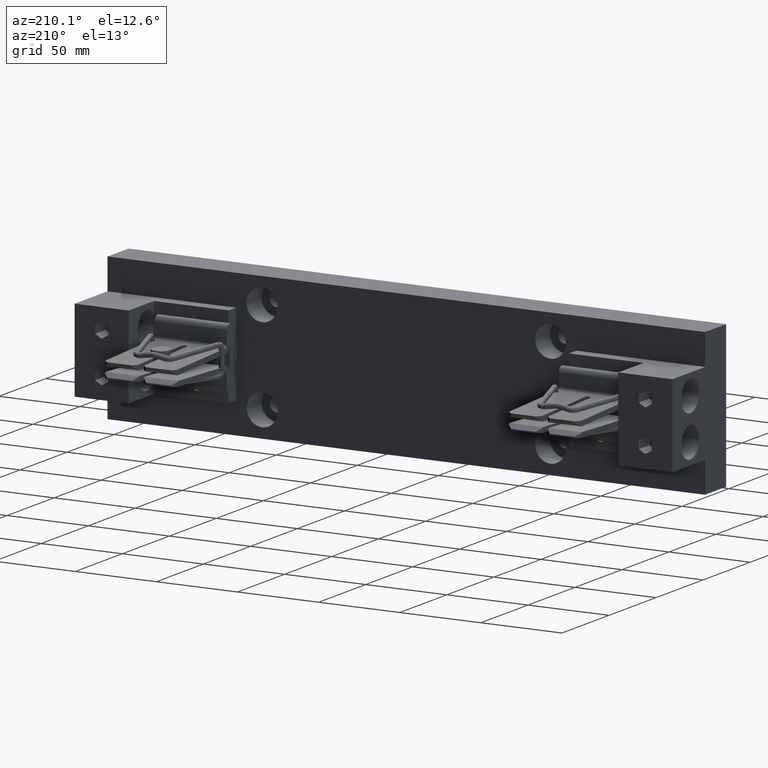
[diagram: clean part render]
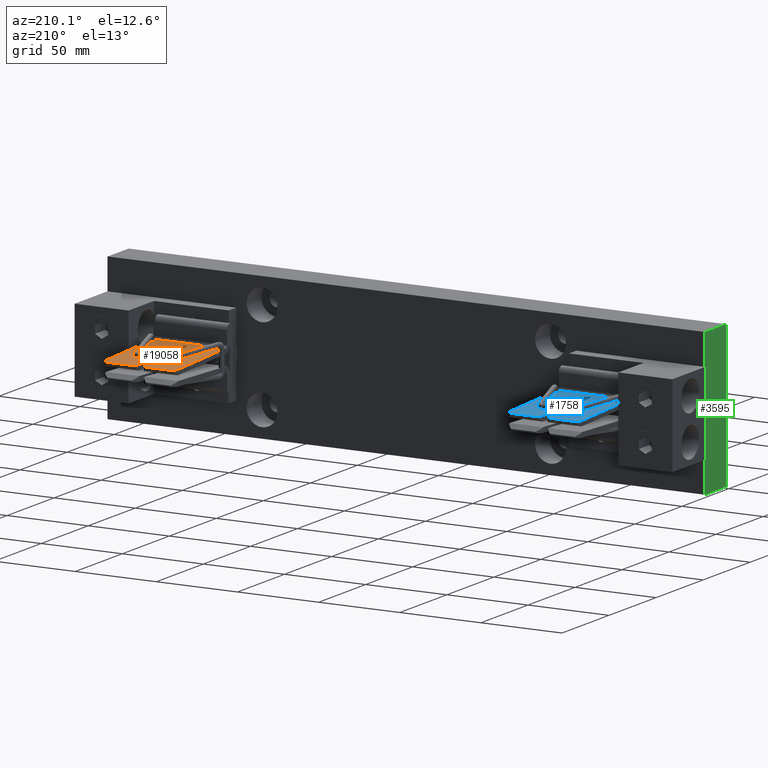
[diagram: same view with three faces highlighted in distinct colors, each labeled with its STEP entity id]
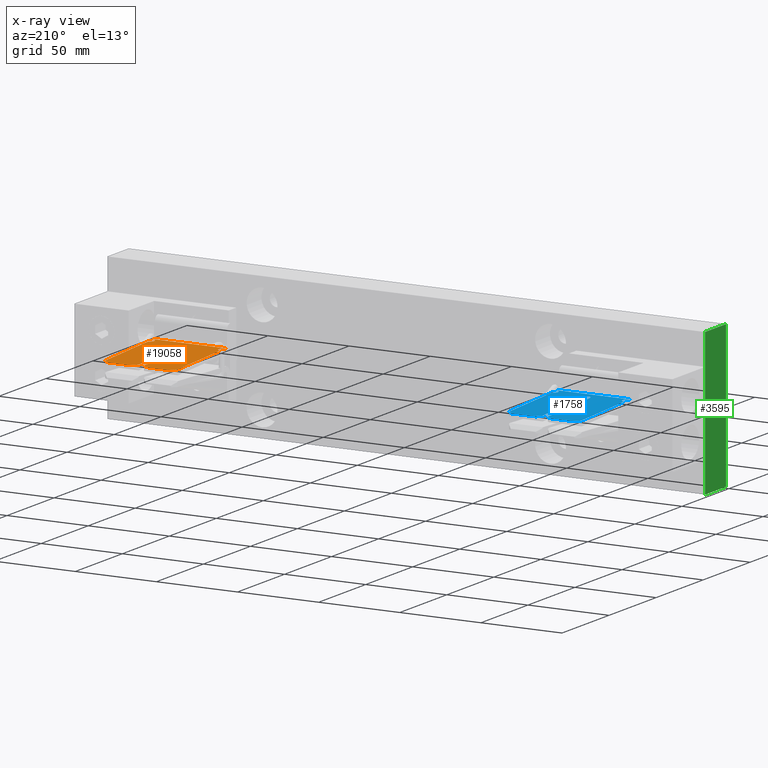
[diagram: x-ray of the same camera — body ghosted, the three highlighted faces saturated]
A machine part, auxiliary view with three faces highlighted in distinct colors.
The next image is the same camera in x-ray (body ghosted, the three faces saturated) — at least one of them is partly hidden behind the body in this view.
Their STEP definitions:

[orange] entity #19058 — the highlighted planar face has unit normal (0, -0.0353, -0.9994).
#101 = EDGE_CURVE ( 'NONE', #7560, #24086, #8574, .T. ) ;
#183 = CARTESIAN_POINT ( 'NONE',  ( 9.869000000000001500, 1.682704926041965500, 0.2086004456207308500 ) ) ;
#501 = VERTEX_POINT ( 'NONE', #13470 ) ;
#544 = VERTEX_POINT ( 'NONE', #11558 ) ;
#606 = CARTESIAN_POINT ( 'NONE',  ( 9.869000000000001500, 0.5659999999999999500, 0.2480280501289742500 ) ) ;
#759 = LINE ( 'NONE', #9593, #12937 ) ;
#764 = EDGE_CURVE ( 'NONE', #20409, #17880, #21560, .T. ) ;
#1144 = LINE ( 'NONE', #13245, #10654 ) ;
#1306 = VECTOR ( 'NONE', #12098, 39.37007874015748100 ) ;
#1331 = VERTEX_POINT ( 'NONE', #8108 ) ;
#1551 = CARTESIAN_POINT ( 'NONE',  ( 10.48700000000000200, 0.5309999999999998100, 0.2492637983786750400 ) ) ;
#1624 = DIRECTION ( 'NONE',  ( -1.000000000000000000, -0.0000000000000000000, -0.0000000000000000000 ) ) ;
#1770 = VECTOR ( 'NONE', #14051, 39.37007874015748900 ) ;
#1784 = CARTESIAN_POINT ( 'NONE',  ( 8.925000000000000700, 2.334999999999999500, 0.1855698028798155900 ) ) ;
#1885 = VERTEX_POINT ( 'NONE', #8795 ) ;
#1898 = DIRECTION ( 'NONE',  ( 0.0000000000000000000, -0.9993772867383173800, 0.03528510665364335100 ) ) ;
#1979 = CARTESIAN_POINT ( 'NONE',  ( 9.730999999999999900, 1.317295073958034700, 0.2215020051960483200 ) ) ;
#2414 = EDGE_CURVE ( 'NONE', #501, #18487, #16982, .T. ) ;
#2516 = CARTESIAN_POINT ( 'NONE',  ( 9.730999999999999900, 2.435000000000000100, 0.1820390935949564000 ) ) ;
#2519 = FACE_OUTER_BOUND ( 'NONE', #14005, .T. ) ;
#2617 = VECTOR ( 'NONE', #4991, 39.37007874015748900 ) ;
#2659 = VECTOR ( 'NONE', #12593, 39.37007874015748100 ) ;
#2828 = EDGE_CURVE ( 'NONE', #4780, #13328, #22293, .T. ) ;
#3028 = VERTEX_POINT ( 'NONE', #5731 ) ;
#3066 = ORIENTED_EDGE ( 'NONE', *, *, #4765, .T. ) ;
#3297 =( BOUNDED_CURVE ( )  B_SPLINE_CURVE ( 3, ( #15003, #13079, #24522, #3610 ),
 .UNSPECIFIED., .F., .T. ) 
 B_SPLINE_CURVE_WITH_KNOTS ( ( 4, 4 ),
 ( 0.3610990432154271800, 2.780493610374365600 ),
 .UNSPECIFIED. ) 
 CURVE ( )  GEOMETRIC_REPRESENTATION_ITEM ( )  RATIONAL_B_SPLINE_CURVE ( ( 1.000000000000000000, 0.5688684075780839900, 0.5688684075780839900, 1.000000000000000000 ) ) 
 REPRESENTATION_ITEM ( '' )  );
#3610 = CARTESIAN_POINT ( 'NONE',  ( 9.730999999999999900, 1.682704926041965300, 0.2086004456207308200 ) ) ;
#3734 = EDGE_CURVE ( 'NONE', #17880, #9034, #8799, .T. ) ;
#3797 = CARTESIAN_POINT ( 'NONE',  ( 9.869000000000001500, 2.435000000000000100, 0.1820390935949564000 ) ) ;
#3829 = LINE ( 'NONE', #16328, #13975 ) ;
#4136 = CARTESIAN_POINT ( 'NONE',  ( 9.730999999999999900, 2.435000000000000100, 0.1820390935949564000 ) ) ;
#4442 = CARTESIAN_POINT ( 'NONE',  ( 9.731000000000001600, 0.4280000000000004400, 0.2529004289420798700 ) ) ;
#4494 = ORIENTED_EDGE ( 'NONE', *, *, #18239, .T. ) ;
#4513 = EDGE_CURVE ( 'NONE', #17185, #15851, #6403, .T. ) ;
#4734 = ORIENTED_EDGE ( 'NONE', *, *, #8304, .T. ) ;
#4765 = EDGE_CURVE ( 'NONE', #7560, #3028, #15897, .T. ) ;
#4780 = VERTEX_POINT ( 'NONE', #22759 ) ;
#4898 = DIRECTION ( 'NONE',  ( -1.000000000000000000, -0.0000000000000000000, -0.0000000000000000000 ) ) ;
#4991 = DIRECTION ( 'NONE',  ( 0.0000000000000000000, -0.9993772867383173800, 0.03528510665364335100 ) ) ;
#5184 = CARTESIAN_POINT ( 'NONE',  ( 10.66058480522760200, 2.349415194772398700, 0.1850608442595556300 ) ) ;
#5220 = LINE ( 'NONE', #11038, #15341 ) ;
#5375 = CARTESIAN_POINT ( 'NONE',  ( 9.869000000000001500, 1.682704926041965500, 0.2086004456207308500 ) ) ;
#5731 = CARTESIAN_POINT ( 'NONE',  ( 10.57499999999999900, 2.435000000000000100, 0.1820390935949564000 ) ) ;
#5986 = VERTEX_POINT ( 'NONE', #5375 ) ;
#6077 = CARTESIAN_POINT ( 'NONE',  ( 9.730999999999999900, 1.682704926041965300, 0.2086004456207308200 ) ) ;
#6403 = LINE ( 'NONE', #2516, #1306 ) ;
#6690 = CARTESIAN_POINT ( 'NONE',  ( 9.113000000000001300, 0.5309999999999998100, 0.2492637983786750400 ) ) ;
#6980 = DIRECTION ( 'NONE',  ( 0.0000000000000000000, -0.03528510665364335100, -0.9993772867383173800 ) ) ;
#7370 = CARTESIAN_POINT ( 'NONE',  ( 8.925000000000000700, 0.3429999999999995800, 0.2559015318342100500 ) ) ;
#7560 = VERTEX_POINT ( 'NONE', #8925 ) ;
#7642 = EDGE_CURVE ( 'NONE', #4780, #24086, #14597, .T. ) ;
#7744 = EDGE_CURVE ( 'NONE', #18487, #5986, #13074, .T. ) ;
#8001 = VECTOR ( 'NONE', #1898, 39.37007874015748900 ) ;
#8108 = CARTESIAN_POINT ( 'NONE',  ( 9.869000000000001500, 0.5659999999999999500, 0.2480280501289742500 ) ) ;
#8247 = EDGE_CURVE ( 'NONE', #15851, #20409, #3297, .T. ) ;
#8304 = EDGE_CURVE ( 'NONE', #18659, #10472, #1144, .T. ) ;
#8496 = ORIENTED_EDGE ( 'NONE', *, *, #22896, .T. ) ;
#8574 = LINE ( 'NONE', #13762, #9156 ) ;
#8795 = CARTESIAN_POINT ( 'NONE',  ( 9.869000000000001500, 1.317295073958034900, 0.2215020051960483200 ) ) ;
#8799 = LINE ( 'NONE', #18072, #13213 ) ;
#8823 = PLANE ( 'NONE',  #24141 ) ;
#8925 = CARTESIAN_POINT ( 'NONE',  ( 10.67500000000000100, 2.335000000000000900, 0.1855698028798153900 ) ) ;
#8984 =( BOUNDED_CURVE ( )  B_SPLINE_CURVE ( 3, ( #19977, #6690, #23854, #12378 ),
 .UNSPECIFIED., .F., .F. ) 
 B_SPLINE_CURVE_WITH_KNOTS ( ( 4, 4 ),
 ( 3.141592653589793100, 6.283185307179586200 ),
 .UNSPECIFIED. ) 
 CURVE ( )  GEOMETRIC_REPRESENTATION_ITEM ( )  RATIONAL_B_SPLINE_CURVE ( ( 1.000000000000000000, 0.3333333333333333700, 0.3333333333333333700, 1.000000000000000000 ) ) 
 REPRESENTATION_ITEM ( '' )  );
#9034 = VERTEX_POINT ( 'NONE', #11836 ) ;
#9043 = ORIENTED_EDGE ( 'NONE', *, *, #7642, .T. ) ;
#9099 = CARTESIAN_POINT ( 'NONE',  ( 8.925000000000000700, 0.5309999999999999200, 0.2492637983786749100 ) ) ;
#9156 = VECTOR ( 'NONE', #12250, 39.37007874015748900 ) ;
#9187 = CARTESIAN_POINT ( 'NONE',  ( 10.67500000000000100, 0.5309999999999999200, 0.2492637983786749100 ) ) ;
#9261 = ORIENTED_EDGE ( 'NONE', *, *, #8247, .T. ) ;
#9340 = DIRECTION ( 'NONE',  ( -0.7068865159459675200, 0.7068865159459636300, -0.02495810785192159300 ) ) ;
#9473 = CARTESIAN_POINT ( 'NONE',  ( 8.925000000000000700, 2.435000000000000100, 0.1820390935949564000 ) ) ;
#9593 = CARTESIAN_POINT ( 'NONE',  ( 8.925000000000000700, 2.435000000000000100, 0.1820390935949564000 ) ) ;
#9729 = ORIENTED_EDGE ( 'NONE', *, *, #10913, .F. ) ;
#9763 = CARTESIAN_POINT ( 'NONE',  ( 9.869000000000001500, 1.317295073958034900, 0.2215020051960483200 ) ) ;
#10231 = ORIENTED_EDGE ( 'NONE', *, *, #16801, .T. ) ;
#10472 = VERTEX_POINT ( 'NONE', #1784 ) ;
#10654 = VECTOR ( 'NONE', #15162, 39.37007874015748100 ) ;
#10913 = EDGE_CURVE ( 'NONE', #13328, #544, #22335, .T. ) ;
#11038 = CARTESIAN_POINT ( 'NONE',  ( 9.869000000000001500, 2.435000000000000100, 0.1820390935949564000 ) ) ;
#11044 = CARTESIAN_POINT ( 'NONE',  ( 10.67500000000000100, 0.3429999999999995800, 0.2559015318342100500 ) ) ;
#11214 = CARTESIAN_POINT ( 'NONE',  ( 9.869000000000001500, 2.335000000000000400, 0.1855698028798155600 ) ) ;
#11397 = VECTOR ( 'NONE', #21516, 39.37007874015748100 ) ;
#11558 = CARTESIAN_POINT ( 'NONE',  ( 8.925000000000000700, 0.3107770382808204300, 0.2570392309354857500 ) ) ;
#11836 = CARTESIAN_POINT ( 'NONE',  ( 9.631000000000000200, 2.435000000000000100, 0.1820390935949564000 ) ) ;
#12088 = LINE ( 'NONE', #13021, #16583 ) ;
#12098 = DIRECTION ( 'NONE',  ( -1.232510108407271800E-016, 0.9993772867383173800, -0.03528510665364335800 ) ) ;
#12250 = DIRECTION ( 'NONE',  ( 0.0000000000000000000, -0.9993772867383173800, 0.03528510665364335100 ) ) ;
#12378 = CARTESIAN_POINT ( 'NONE',  ( 8.925000000000000700, 0.3429999999999995800, 0.2559015318342100500 ) ) ;
#12484 = VECTOR ( 'NONE', #13275, 39.37007874015748100 ) ;
#12593 = DIRECTION ( 'NONE',  ( -1.000000000000000000, -0.0000000000000000000, -0.0000000000000000000 ) ) ;
#12793 = ORIENTED_EDGE ( 'NONE', *, *, #17871, .T. ) ;
#12881 = EDGE_CURVE ( 'NONE', #1885, #1331, #5220, .T. ) ;
#12937 = VECTOR ( 'NONE', #21089, 39.37007874015748900 ) ;
#13021 = CARTESIAN_POINT ( 'NONE',  ( 10.67500000000000100, 2.435000000000000100, 0.1820390935949564000 ) ) ;
#13074 = LINE ( 'NONE', #3797, #12484 ) ;
#13079 = CARTESIAN_POINT ( 'NONE',  ( 9.530693429342935700, 1.392942478079820300, 0.2188311152749655200 ) ) ;
#13213 = VECTOR ( 'NONE', #13684, 39.37007874015748900 ) ;
#13245 = CARTESIAN_POINT ( 'NONE',  ( 9.025000000000000400, 2.435000000000000100, 0.1820390935949564000 ) ) ;
#13275 = DIRECTION ( 'NONE',  ( -1.232510108407271800E-016, -0.9993772867383173800, 0.03528510665364335800 ) ) ;
#13312 = CARTESIAN_POINT ( 'NONE',  ( 9.730999999999999900, 2.335000000000000000, 0.1855698028798155600 ) ) ;
#13328 = VERTEX_POINT ( 'NONE', #20228 ) ;
#13470 = CARTESIAN_POINT ( 'NONE',  ( 9.969000000000001200, 2.435000000000000100, 0.1820390935949564000 ) ) ;
#13684 = DIRECTION ( 'NONE',  ( -0.7068865159459675200, 0.7068865159459636300, -0.02495810785192158900 ) ) ;
#13762 = CARTESIAN_POINT ( 'NONE',  ( 10.67500000000000100, 2.435000000000000100, 0.1820390935949564000 ) ) ;
#13975 = VECTOR ( 'NONE', #4898, 39.37007874015748100 ) ;
#14005 = EDGE_LOOP ( 'NONE', ( #20634, #9261, #21390, #22452, #8496, #4734, #15685, #4494, #12793, #9729, #22065, #9043, #16382, #3066, #23585, #23701, #24542, #10231, #21113, #18359 ) ) ;
#14051 = DIRECTION ( 'NONE',  ( -0.7068865159459646300, -0.7068865159459665200, 0.02495810785192169300 ) ) ;
#14597 =( BOUNDED_CURVE ( )  B_SPLINE_CURVE ( 3, ( #11044, #22470, #1551, #14878 ),
 .UNSPECIFIED., .F., .T. ) 
 B_SPLINE_CURVE_WITH_KNOTS ( ( 4, 4 ),
 ( 0.0000000000000000000, 3.141592653589793100 ),
 .UNSPECIFIED. ) 
 CURVE ( )  GEOMETRIC_REPRESENTATION_ITEM ( )  RATIONAL_B_SPLINE_CURVE ( ( 1.000000000000000000, 0.3333333333333333700, 0.3333333333333333700, 1.000000000000000000 ) ) 
 REPRESENTATION_ITEM ( '' )  );
#14878 = CARTESIAN_POINT ( 'NONE',  ( 10.67500000000000100, 0.5309999999999999200, 0.2492637983786749100 ) ) ;
#15003 = CARTESIAN_POINT ( 'NONE',  ( 9.730999999999999900, 1.317295073958034700, 0.2215020051960483200 ) ) ;
#15162 = DIRECTION ( 'NONE',  ( -0.7068865159459646300, -0.7068865159459666300, 0.02495810785192169700 ) ) ;
#15341 = VECTOR ( 'NONE', #24402, 39.37007874015748100 ) ;
#15454 = CARTESIAN_POINT ( 'NONE',  ( 9.025000000000000400, 2.435000000000000100, 0.1820390935949564000 ) ) ;
#15465 = VERTEX_POINT ( 'NONE', #7370 ) ;
#15685 = ORIENTED_EDGE ( 'NONE', *, *, #23740, .T. ) ;
#15851 = VERTEX_POINT ( 'NONE', #1979 ) ;
#15897 = LINE ( 'NONE', #5184, #20335 ) ;
#16328 = CARTESIAN_POINT ( 'NONE',  ( 10.67500000000000100, 2.435000000000000100, 0.1820390935949564000 ) ) ;
#16354 = EDGE_CURVE ( 'NONE', #3028, #501, #12088, .T. ) ;
#16382 = ORIENTED_EDGE ( 'NONE', *, *, #101, .F. ) ;
#16420 = CARTESIAN_POINT ( 'NONE',  ( 10.67500000000000100, 2.435000000000000100, 0.1820390935949564000 ) ) ;
#16583 = VECTOR ( 'NONE', #1624, 39.37007874015748100 ) ;
#16801 = EDGE_CURVE ( 'NONE', #5986, #1885, #18553, .T. ) ;
#16982 = LINE ( 'NONE', #20030, #1770 ) ;
#17185 = VERTEX_POINT ( 'NONE', #22429 ) ;
#17771 = CARTESIAN_POINT ( 'NONE',  ( 9.730999999999999900, 0.5659999999999998400, 0.2480280501289742200 ) ) ;
#17871 = EDGE_CURVE ( 'NONE', #15465, #544, #23225, .T. ) ;
#17880 = VERTEX_POINT ( 'NONE', #13312 ) ;
#18072 = CARTESIAN_POINT ( 'NONE',  ( 9.714494163063971400, 2.351505836936028000, 0.1849870297625715000 ) ) ;
#18239 = EDGE_CURVE ( 'NONE', #22463, #15465, #8984, .T. ) ;
#18359 = ORIENTED_EDGE ( 'NONE', *, *, #19399, .T. ) ;
#18381 = CARTESIAN_POINT ( 'NONE',  ( 10.67500000000000100, 2.435000000000000100, 0.1820390935949564000 ) ) ;
#18487 = VERTEX_POINT ( 'NONE', #11214 ) ;
#18553 =( BOUNDED_CURVE ( )  B_SPLINE_CURVE ( 3, ( #183, #19243, #21202, #9763 ),
 .UNSPECIFIED., .F., .F. ) 
 B_SPLINE_CURVE_WITH_KNOTS ( ( 4, 4 ),
 ( 3.502691696805225500, 5.922086263964152900 ),
 .UNSPECIFIED. ) 
 CURVE ( )  GEOMETRIC_REPRESENTATION_ITEM ( )  RATIONAL_B_SPLINE_CURVE ( ( 1.000000000000000000, 0.5688684075780874300, 0.5688684075780874300, 1.000000000000000000 ) ) 
 REPRESENTATION_ITEM ( '' )  );
#18659 = VERTEX_POINT ( 'NONE', #15454 ) ;
#19058 = ADVANCED_FACE ( 'NONE', ( #2519 ), #8823, .F. ) ;
#19243 = CARTESIAN_POINT ( 'NONE',  ( 10.06930657065706600, 1.607057521920179000, 0.2112713355418137100 ) ) ;
#19399 = EDGE_CURVE ( 'NONE', #1331, #17185, #21501, .T. ) ;
#19580 = CARTESIAN_POINT ( 'NONE',  ( 9.869000000000001500, 0.4280000000000006000, 0.2529004289420798700 ) ) ;
#19977 = CARTESIAN_POINT ( 'NONE',  ( 8.925000000000000700, 0.5309999999999999200, 0.2492637983786749100 ) ) ;
#20030 = CARTESIAN_POINT ( 'NONE',  ( 9.969000000000001200, 2.435000000000000100, 0.1820390935949564000 ) ) ;
#20228 = CARTESIAN_POINT ( 'NONE',  ( 10.67500000000000100, 0.3107770382808204300, 0.2570392309354857500 ) ) ;
#20270 = DIRECTION ( 'NONE',  ( 0.0000000000000000000, 0.9993772867383173800, -0.03528510665364335100 ) ) ;
#20335 = VECTOR ( 'NONE', #9340, 39.37007874015748900 ) ;
#20409 = VERTEX_POINT ( 'NONE', #6077 ) ;
#20634 = ORIENTED_EDGE ( 'NONE', *, *, #4513, .T. ) ;
#21089 = DIRECTION ( 'NONE',  ( 0.0000000000000000000, -0.9993772867383173800, 0.03528510665364335100 ) ) ;
#21113 = ORIENTED_EDGE ( 'NONE', *, *, #12881, .T. ) ;
#21202 = CARTESIAN_POINT ( 'NONE',  ( 10.06930657065706600, 1.392942478079821400, 0.2188311152749654300 ) ) ;
#21390 = ORIENTED_EDGE ( 'NONE', *, *, #764, .T. ) ;
#21501 =( BOUNDED_CURVE ( )  B_SPLINE_CURVE ( 3, ( #606, #19580, #4442, #17771 ),
 .UNSPECIFIED., .F., .T. ) 
 B_SPLINE_CURVE_WITH_KNOTS ( ( 4, 4 ),
 ( 4.712388980384689700, 7.853981633974481000 ),
 .UNSPECIFIED. ) 
 CURVE ( )  GEOMETRIC_REPRESENTATION_ITEM ( )  RATIONAL_B_SPLINE_CURVE ( ( 1.000000000000000000, 0.3333333333333339800, 0.3333333333333339800, 1.000000000000000000 ) ) 
 REPRESENTATION_ITEM ( '' )  );
#21516 = DIRECTION ( 'NONE',  ( -1.232510108407271800E-016, 0.9993772867383173800, -0.03528510665364335800 ) ) ;
#21560 = LINE ( 'NONE', #4136, #11397 ) ;
#22065 = ORIENTED_EDGE ( 'NONE', *, *, #2828, .F. ) ;
#22293 = LINE ( 'NONE', #16420, #2617 ) ;
#22335 = LINE ( 'NONE', #24149, #2659 ) ;
#22429 = CARTESIAN_POINT ( 'NONE',  ( 9.730999999999999900, 0.5659999999999998400, 0.2480280501289742200 ) ) ;
#22452 = ORIENTED_EDGE ( 'NONE', *, *, #3734, .T. ) ;
#22463 = VERTEX_POINT ( 'NONE', #9099 ) ;
#22470 = CARTESIAN_POINT ( 'NONE',  ( 10.48700000000000200, 0.3429999999999997500, 0.2559015318342102700 ) ) ;
#22759 = CARTESIAN_POINT ( 'NONE',  ( 10.67500000000000100, 0.3429999999999995800, 0.2559015318342100500 ) ) ;
#22896 = EDGE_CURVE ( 'NONE', #9034, #18659, #3829, .T. ) ;
#23225 = LINE ( 'NONE', #9473, #8001 ) ;
#23585 = ORIENTED_EDGE ( 'NONE', *, *, #16354, .T. ) ;
#23701 = ORIENTED_EDGE ( 'NONE', *, *, #2414, .T. ) ;
#23740 = EDGE_CURVE ( 'NONE', #10472, #22463, #759, .T. ) ;
#23854 = CARTESIAN_POINT ( 'NONE',  ( 9.113000000000001300, 0.3429999999999997500, 0.2559015318342102700 ) ) ;
#24086 = VERTEX_POINT ( 'NONE', #9187 ) ;
#24141 = AXIS2_PLACEMENT_3D ( 'NONE', #18381, #6980, #20270 ) ;
#24149 = CARTESIAN_POINT ( 'NONE',  ( 10.67500000000000100, 0.3107770382808204300, 0.2570392309354857500 ) ) ;
#24402 = DIRECTION ( 'NONE',  ( -1.232510108407271800E-016, -0.9993772867383173800, 0.03528510665364335800 ) ) ;
#24522 = CARTESIAN_POINT ( 'NONE',  ( 9.530693429342935700, 1.607057521920179900, 0.2112713355418136300 ) ) ;
#24542 = ORIENTED_EDGE ( 'NONE', *, *, #7744, .T. ) ;

[blue] entity #1758 — the highlighted planar face has unit normal (0, -0.0353, -0.9994).
#179 = LINE ( 'NONE', #21905, #20464 ) ;
#412 = VERTEX_POINT ( 'NONE', #10810 ) ;
#529 = EDGE_CURVE ( 'NONE', #2115, #22654, #1335, .T. ) ;
#567 = LINE ( 'NONE', #8317, #10686 ) ;
#781 = ORIENTED_EDGE ( 'NONE', *, *, #17148, .T. ) ;
#785 = CARTESIAN_POINT ( 'NONE',  ( 0.8605848052276017200, 2.349415194772398700, 0.1850608442595559600 ) ) ;
#822 = VECTOR ( 'NONE', #5183, 39.37007874015748900 ) ;
#856 = DIRECTION ( 'NONE',  ( 0.0000000000000000000, 0.9993772867383173800, -0.03528510665364335100 ) ) ;
#918 = VECTOR ( 'NONE', #15337, 39.37007874015748100 ) ;
#1091 = EDGE_CURVE ( 'NONE', #19951, #3414, #23925, .T. ) ;
#1335 = LINE ( 'NONE', #9888, #23426 ) ;
#1503 = ORIENTED_EDGE ( 'NONE', *, *, #21638, .F. ) ;
#1758 = ADVANCED_FACE ( 'NONE', ( #20878 ), #23634, .F. ) ;
#1996 = CARTESIAN_POINT ( 'NONE',  ( 0.06900000000000014500, 2.435000000000000100, 0.1820390935949567600 ) ) ;
#2061 = DIRECTION ( 'NONE',  ( -1.000000000000000000, -0.0000000000000000000, -0.0000000000000000000 ) ) ;
#2115 = VERTEX_POINT ( 'NONE', #23995 ) ;
#2173 = DIRECTION ( 'NONE',  ( -1.000000000000000000, -0.0000000000000000000, -0.0000000000000000000 ) ) ;
#2297 = DIRECTION ( 'NONE',  ( 0.0000000000000000000, -0.9993772867383173800, 0.03528510665364335100 ) ) ;
#2735 = VECTOR ( 'NONE', #2297, 39.37007874015748900 ) ;
#3116 = EDGE_CURVE ( 'NONE', #8749, #14112, #22524, .T. ) ;
#3213 = EDGE_LOOP ( 'NONE', ( #17993, #13100, #11315, #11673, #15904, #1503, #20893, #12540, #21292, #12229, #22116, #4292, #15645, #781, #19409, #20046 ) ) ;
#3414 = VERTEX_POINT ( 'NONE', #3827 ) ;
#3827 = CARTESIAN_POINT ( 'NONE',  ( -0.8750000000000000000, 0.5309999999999999200, 0.2492637983786752400 ) ) ;
#3956 = VERTEX_POINT ( 'NONE', #10761 ) ;
#4292 = ORIENTED_EDGE ( 'NONE', *, *, #10681, .T. ) ;
#4858 = CARTESIAN_POINT ( 'NONE',  ( 0.6870000000000000600, 0.5309999999999998100, 0.2492637983786753800 ) ) ;
#4868 = CARTESIAN_POINT ( 'NONE',  ( -0.6870000000000000600, 0.3429999999999997500, 0.2559015318342106000 ) ) ;
#5183 = DIRECTION ( 'NONE',  ( 0.0000000000000000000, -0.9993772867383173800, 0.03528510665364335100 ) ) ;
#5562 = CARTESIAN_POINT ( 'NONE',  ( 0.8750000000000000000, 2.335000000000000900, 0.1855698028798157300 ) ) ;
#5603 = CARTESIAN_POINT ( 'NONE',  ( 0.8750000000000000000, 0.5309999999999999200, 0.2492637983786752400 ) ) ;
#6775 = DIRECTION ( 'NONE',  ( 0.0000000000000000000, -0.9993772867383173800, 0.03528510665364335100 ) ) ;
#6798 = CARTESIAN_POINT ( 'NONE',  ( 0.8750000000000000000, 0.3429999999999995800, 0.2559015318342103800 ) ) ;
#7119 = EDGE_CURVE ( 'NONE', #18784, #9539, #11524, .T. ) ;
#7122 = CARTESIAN_POINT ( 'NONE',  ( 0.8750000000000000000, 2.435000000000000100, 0.1820390935949567600 ) ) ;
#7200 = VERTEX_POINT ( 'NONE', #19378 ) ;
#8155 = LINE ( 'NONE', #785, #18293 ) ;
#8317 = CARTESIAN_POINT ( 'NONE',  ( 0.1689999999999994800, 2.435000000000000100, 0.1820390935949567600 ) ) ;
#8487 = DIRECTION ( 'NONE',  ( -1.232510108407271800E-016, 0.9993772867383173800, -0.03528510665364335800 ) ) ;
#8532 = CARTESIAN_POINT ( 'NONE',  ( -0.8750000000000000000, 2.435000000000000100, 0.1820390935949567600 ) ) ;
#8749 = VERTEX_POINT ( 'NONE', #15442 ) ;
#9025 = LINE ( 'NONE', #16063, #23649 ) ;
#9508 = CARTESIAN_POINT ( 'NONE',  ( 0.06899999999999977000, 0.5659999999999999500, 0.2480280501289745800 ) ) ;
#9539 = VERTEX_POINT ( 'NONE', #21056 ) ;
#9611 = VERTEX_POINT ( 'NONE', #18378 ) ;
#9758 = CARTESIAN_POINT ( 'NONE',  ( 0.8750000000000000000, 0.3107770382808204300, 0.2570392309354860800 ) ) ;
#9806 =( BOUNDED_CURVE ( )  B_SPLINE_CURVE ( 3, ( #10929, #11006, #24370, #12912 ),
 .UNSPECIFIED., .F., .T. ) 
 B_SPLINE_CURVE_WITH_KNOTS ( ( 4, 4 ),
 ( 4.712388980384689700, 7.853981633974481000 ),
 .UNSPECIFIED. ) 
 CURVE ( )  GEOMETRIC_REPRESENTATION_ITEM ( )  RATIONAL_B_SPLINE_CURVE ( ( 1.000000000000000000, 0.3333333333333339800, 0.3333333333333339800, 1.000000000000000000 ) ) 
 REPRESENTATION_ITEM ( '' )  );
#9888 = CARTESIAN_POINT ( 'NONE',  ( 0.8750000000000000000, 2.435000000000000100, 0.1820390935949567600 ) ) ;
#10367 = DIRECTION ( 'NONE',  ( 0.0000000000000000000, -0.9993772867383173800, 0.03528510665364335100 ) ) ;
#10681 = EDGE_CURVE ( 'NONE', #9539, #9611, #567, .T. ) ;
#10686 = VECTOR ( 'NONE', #21642, 39.37007874015748900 ) ;
#10761 = CARTESIAN_POINT ( 'NONE',  ( 0.8750000000000000000, 0.3107770382808204300, 0.2570392309354860800 ) ) ;
#10810 = CARTESIAN_POINT ( 'NONE',  ( -0.8750000000000000000, 0.3429999999999995800, 0.2559015318342103800 ) ) ;
#10929 = CARTESIAN_POINT ( 'NONE',  ( 0.06899999999999977000, 0.5659999999999999500, 0.2480280501289745800 ) ) ;
#11006 = CARTESIAN_POINT ( 'NONE',  ( 0.06899999999999978400, 0.4280000000000006000, 0.2529004289420802000 ) ) ;
#11010 = LINE ( 'NONE', #9758, #21156 ) ;
#11315 = ORIENTED_EDGE ( 'NONE', *, *, #1091, .T. ) ;
#11373 = DIRECTION ( 'NONE',  ( -0.7068865159459675200, 0.7068865159459636300, -0.02495810785192158900 ) ) ;
#11524 = LINE ( 'NONE', #15402, #20463 ) ;
#11673 = ORIENTED_EDGE ( 'NONE', *, *, #17049, .T. ) ;
#11949 = EDGE_CURVE ( 'NONE', #20242, #18784, #8155, .T. ) ;
#12163 = EDGE_CURVE ( 'NONE', #8749, #3956, #20476, .T. ) ;
#12229 = ORIENTED_EDGE ( 'NONE', *, *, #11949, .T. ) ;
#12241 = DIRECTION ( 'NONE',  ( 0.0000000000000000000, -0.03528510665364335100, -0.9993772867383173800 ) ) ;
#12243 = VERTEX_POINT ( 'NONE', #20575 ) ;
#12540 = ORIENTED_EDGE ( 'NONE', *, *, #3116, .T. ) ;
#12912 = CARTESIAN_POINT ( 'NONE',  ( -0.06899999999999977000, 0.5659999999999998400, 0.2480280501289745500 ) ) ;
#13100 = ORIENTED_EDGE ( 'NONE', *, *, #23204, .T. ) ;
#13259 = CARTESIAN_POINT ( 'NONE',  ( -0.7749999999999996900, 2.435000000000000100, 0.1820390935949567600 ) ) ;
#13552 = LINE ( 'NONE', #20954, #18647 ) ;
#13707 = CARTESIAN_POINT ( 'NONE',  ( 0.8750000000000000000, 2.435000000000000100, 0.1820390935949567600 ) ) ;
#13708 = EDGE_CURVE ( 'NONE', #12243, #18241, #9025, .T. ) ;
#13730 = VECTOR ( 'NONE', #10367, 39.37007874015748900 ) ;
#14102 = DIRECTION ( 'NONE',  ( -0.7068865159459675200, 0.7068865159459636300, -0.02495810785192159300 ) ) ;
#14112 = VERTEX_POINT ( 'NONE', #5603 ) ;
#14136 = EDGE_CURVE ( 'NONE', #9611, #23687, #15496, .T. ) ;
#14429 =( BOUNDED_CURVE ( )  B_SPLINE_CURVE ( 3, ( #23891, #16301, #4868, #18203 ),
 .UNSPECIFIED., .F., .F. ) 
 B_SPLINE_CURVE_WITH_KNOTS ( ( 4, 4 ),
 ( 3.141592653589793100, 6.283185307179586200 ),
 .UNSPECIFIED. ) 
 CURVE ( )  GEOMETRIC_REPRESENTATION_ITEM ( )  RATIONAL_B_SPLINE_CURVE ( ( 1.000000000000000000, 0.3333333333333333700, 0.3333333333333333700, 1.000000000000000000 ) ) 
 REPRESENTATION_ITEM ( '' )  );
#14656 = EDGE_CURVE ( 'NONE', #20242, #14112, #23006, .T. ) ;
#15187 = DIRECTION ( 'NONE',  ( -0.7068865159459646300, -0.7068865159459666300, 0.02495810785192169700 ) ) ;
#15303 = CARTESIAN_POINT ( 'NONE',  ( -0.7749999999999996900, 2.435000000000000100, 0.1820390935949567600 ) ) ;
#15337 = DIRECTION ( 'NONE',  ( -1.232510108407271800E-016, -0.9993772867383173800, 0.03528510665364335800 ) ) ;
#15402 = CARTESIAN_POINT ( 'NONE',  ( 0.8750000000000000000, 2.435000000000000100, 0.1820390935949567600 ) ) ;
#15442 = CARTESIAN_POINT ( 'NONE',  ( 0.8750000000000000000, 0.3429999999999995800, 0.2559015318342103800 ) ) ;
#15496 = LINE ( 'NONE', #1996, #918 ) ;
#15645 = ORIENTED_EDGE ( 'NONE', *, *, #14136, .T. ) ;
#15904 = ORIENTED_EDGE ( 'NONE', *, *, #18244, .T. ) ;
#16063 = CARTESIAN_POINT ( 'NONE',  ( -0.06900000000000000600, 2.435000000000000100, 0.1820390935949567600 ) ) ;
#16301 = CARTESIAN_POINT ( 'NONE',  ( -0.6870000000000000600, 0.5309999999999998100, 0.2492637983786753800 ) ) ;
#17049 = EDGE_CURVE ( 'NONE', #3414, #412, #14429, .T. ) ;
#17148 = EDGE_CURVE ( 'NONE', #23687, #12243, #9806, .T. ) ;
#17311 = DIRECTION ( 'NONE',  ( -1.000000000000000000, -0.0000000000000000000, -0.0000000000000000000 ) ) ;
#17915 = CARTESIAN_POINT ( 'NONE',  ( -0.06899999999999997800, 2.335000000000000000, 0.1855698028798158900 ) ) ;
#17993 = ORIENTED_EDGE ( 'NONE', *, *, #529, .T. ) ;
#18118 = LINE ( 'NONE', #13259, #20485 ) ;
#18186 = CARTESIAN_POINT ( 'NONE',  ( 0.6870000000000000600, 0.3429999999999997500, 0.2559015318342106000 ) ) ;
#18203 = CARTESIAN_POINT ( 'NONE',  ( -0.8750000000000000000, 0.3429999999999995800, 0.2559015318342103800 ) ) ;
#18241 = VERTEX_POINT ( 'NONE', #17915 ) ;
#18244 = EDGE_CURVE ( 'NONE', #412, #7200, #179, .T. ) ;
#18293 = VECTOR ( 'NONE', #14102, 39.37007874015748900 ) ;
#18378 = CARTESIAN_POINT ( 'NONE',  ( 0.06900000000000013100, 2.335000000000000400, 0.1855698028798158900 ) ) ;
#18593 = EDGE_CURVE ( 'NONE', #18241, #2115, #13552, .T. ) ;
#18647 = VECTOR ( 'NONE', #11373, 39.37007874015748900 ) ;
#18784 = VERTEX_POINT ( 'NONE', #23577 ) ;
#19378 = CARTESIAN_POINT ( 'NONE',  ( -0.8750000000000000000, 0.3107770382808204300, 0.2570392309354860800 ) ) ;
#19409 = ORIENTED_EDGE ( 'NONE', *, *, #13708, .T. ) ;
#19951 = VERTEX_POINT ( 'NONE', #21837 ) ;
#20046 = ORIENTED_EDGE ( 'NONE', *, *, #18593, .T. ) ;
#20074 = CARTESIAN_POINT ( 'NONE',  ( 0.8750000000000000000, 0.5309999999999999200, 0.2492637983786752400 ) ) ;
#20242 = VERTEX_POINT ( 'NONE', #5562 ) ;
#20463 = VECTOR ( 'NONE', #17311, 39.37007874015748100 ) ;
#20464 = VECTOR ( 'NONE', #6775, 39.37007874015748900 ) ;
#20476 = LINE ( 'NONE', #7122, #822 ) ;
#20485 = VECTOR ( 'NONE', #15187, 39.37007874015748100 ) ;
#20575 = CARTESIAN_POINT ( 'NONE',  ( -0.06899999999999977000, 0.5659999999999998400, 0.2480280501289745500 ) ) ;
#20655 = AXIS2_PLACEMENT_3D ( 'NONE', #23724, #12241, #856 ) ;
#20878 = FACE_OUTER_BOUND ( 'NONE', #3213, .T. ) ;
#20893 = ORIENTED_EDGE ( 'NONE', *, *, #12163, .F. ) ;
#20954 = CARTESIAN_POINT ( 'NONE',  ( -0.08550583693602800700, 2.351505836936028000, 0.1849870297625718400 ) ) ;
#21056 = CARTESIAN_POINT ( 'NONE',  ( 0.1689999999999993700, 2.435000000000000100, 0.1820390935949567600 ) ) ;
#21156 = VECTOR ( 'NONE', #2173, 39.37007874015748100 ) ;
#21292 = ORIENTED_EDGE ( 'NONE', *, *, #14656, .F. ) ;
#21638 = EDGE_CURVE ( 'NONE', #3956, #7200, #11010, .T. ) ;
#21642 = DIRECTION ( 'NONE',  ( -0.7068865159459646300, -0.7068865159459665200, 0.02495810785192169300 ) ) ;
#21837 = CARTESIAN_POINT ( 'NONE',  ( -0.8750000000000000000, 2.334999999999999500, 0.1855698028798159200 ) ) ;
#21905 = CARTESIAN_POINT ( 'NONE',  ( -0.8750000000000000000, 2.435000000000000100, 0.1820390935949567600 ) ) ;
#22116 = ORIENTED_EDGE ( 'NONE', *, *, #7119, .T. ) ;
#22524 =( BOUNDED_CURVE ( )  B_SPLINE_CURVE ( 3, ( #6798, #18186, #4858, #20074 ),
 .UNSPECIFIED., .F., .T. ) 
 B_SPLINE_CURVE_WITH_KNOTS ( ( 4, 4 ),
 ( 0.0000000000000000000, 3.141592653589793100 ),
 .UNSPECIFIED. ) 
 CURVE ( )  GEOMETRIC_REPRESENTATION_ITEM ( )  RATIONAL_B_SPLINE_CURVE ( ( 1.000000000000000000, 0.3333333333333333700, 0.3333333333333333700, 1.000000000000000000 ) ) 
 REPRESENTATION_ITEM ( '' )  );
#22654 = VERTEX_POINT ( 'NONE', #15303 ) ;
#23006 = LINE ( 'NONE', #13707, #2735 ) ;
#23204 = EDGE_CURVE ( 'NONE', #22654, #19951, #18118, .T. ) ;
#23426 = VECTOR ( 'NONE', #2061, 39.37007874015748100 ) ;
#23577 = CARTESIAN_POINT ( 'NONE',  ( 0.7749999999999999100, 2.435000000000000100, 0.1820390935949567600 ) ) ;
#23634 = PLANE ( 'NONE',  #20655 ) ;
#23649 = VECTOR ( 'NONE', #8487, 39.37007874015748100 ) ;
#23687 = VERTEX_POINT ( 'NONE', #9508 ) ;
#23724 = CARTESIAN_POINT ( 'NONE',  ( 0.8750000000000000000, 2.435000000000000100, 0.1820390935949567600 ) ) ;
#23891 = CARTESIAN_POINT ( 'NONE',  ( -0.8750000000000000000, 0.5309999999999999200, 0.2492637983786752400 ) ) ;
#23925 = LINE ( 'NONE', #8532, #13730 ) ;
#23995 = CARTESIAN_POINT ( 'NONE',  ( -0.1690000000000005700, 2.435000000000000100, 0.1820390935949567600 ) ) ;
#24370 = CARTESIAN_POINT ( 'NONE',  ( -0.06899999999999950600, 0.4280000000000004400, 0.2529004289420802000 ) ) ;

[green] entity #3595 — the highlighted planar face has unit normal (1, -0, 0).
#1344 = FACE_OUTER_BOUND ( 'NONE', #9558, .T. ) ;
#2330 = ORIENTED_EDGE ( 'NONE', *, *, #5272, .T. ) ;
#2653 = CARTESIAN_POINT ( 'NONE',  ( -2.349999999999999200, -0.3120000000000000000, 1.750000000000000200 ) ) ;
#2707 = VERTEX_POINT ( 'NONE', #8438 ) ;
#3341 = CARTESIAN_POINT ( 'NONE',  ( -2.349999999999999200, -0.3120000000000000000, 1.750000000000000200 ) ) ;
#3595 = ADVANCED_FACE ( 'NONE', ( #1344 ), #15927, .F. ) ;
#4565 = CARTESIAN_POINT ( 'NONE',  ( -2.349999999999999200, -1.191999999999999900, 1.750000000000000200 ) ) ;
#4578 = DIRECTION ( 'NONE',  ( 0.0000000000000000000, 0.0000000000000000000, -1.000000000000000000 ) ) ;
#5249 = DIRECTION ( 'NONE',  ( -0.0000000000000000000, -0.0000000000000000000, 1.000000000000000000 ) ) ;
#5256 = LINE ( 'NONE', #5809, #15367 ) ;
#5272 = EDGE_CURVE ( 'NONE', #2707, #21165, #5256, .T. ) ;
#5809 = CARTESIAN_POINT ( 'NONE',  ( -2.349999999999999200, -1.191999999999999900, 1.750000000000000200 ) ) ;
#6413 = CARTESIAN_POINT ( 'NONE',  ( -2.349999999999999200, -0.3120000000000000000, 1.750000000000000200 ) ) ;
#6961 = CARTESIAN_POINT ( 'NONE',  ( -2.349999999999999200, -0.3120000000000000000, 1.750000000000000200 ) ) ;
#7947 = LINE ( 'NONE', #17190, #21959 ) ;
#8438 = CARTESIAN_POINT ( 'NONE',  ( -2.349999999999999200, -1.191999999999999900, -1.749999999999999600 ) ) ;
#8492 = ORIENTED_EDGE ( 'NONE', *, *, #17674, .F. ) ;
#8727 = EDGE_CURVE ( 'NONE', #9869, #2707, #7947, .T. ) ;
#8816 = EDGE_CURVE ( 'NONE', #12106, #21165, #21931, .T. ) ;
#8944 = AXIS2_PLACEMENT_3D ( 'NONE', #2653, #16014, #4578 ) ;
#9558 = EDGE_LOOP ( 'NONE', ( #2330, #12204, #8492, #10504 ) ) ;
#9869 = VERTEX_POINT ( 'NONE', #11509 ) ;
#10504 = ORIENTED_EDGE ( 'NONE', *, *, #8727, .T. ) ;
#10999 = VECTOR ( 'NONE', #5249, 39.37007874015748100 ) ;
#11509 = CARTESIAN_POINT ( 'NONE',  ( -2.349999999999999200, -0.3120000000000000000, -1.749999999999999600 ) ) ;
#11775 = VECTOR ( 'NONE', #20027, 39.37007874015748100 ) ;
#12106 = VERTEX_POINT ( 'NONE', #6961 ) ;
#12204 = ORIENTED_EDGE ( 'NONE', *, *, #8816, .F. ) ;
#13353 = DIRECTION ( 'NONE',  ( -0.0000000000000000000, -1.000000000000000000, -0.0000000000000000000 ) ) ;
#15204 = DIRECTION ( 'NONE',  ( -0.0000000000000000000, -0.0000000000000000000, 1.000000000000000000 ) ) ;
#15367 = VECTOR ( 'NONE', #15204, 39.37007874015748100 ) ;
#15927 = PLANE ( 'NONE',  #8944 ) ;
#16014 = DIRECTION ( 'NONE',  ( 1.000000000000000000, -0.0000000000000000000, 0.0000000000000000000 ) ) ;
#17190 = CARTESIAN_POINT ( 'NONE',  ( -2.349999999999999200, -0.3120000000000000000, -1.749999999999999600 ) ) ;
#17674 = EDGE_CURVE ( 'NONE', #9869, #12106, #21140, .T. ) ;
#20027 = DIRECTION ( 'NONE',  ( -0.0000000000000000000, -1.000000000000000000, -0.0000000000000000000 ) ) ;
#21140 = LINE ( 'NONE', #3341, #10999 ) ;
#21165 = VERTEX_POINT ( 'NONE', #4565 ) ;
#21931 = LINE ( 'NONE', #6413, #11775 ) ;
#21959 = VECTOR ( 'NONE', #13353, 39.37007874015748100 ) ;